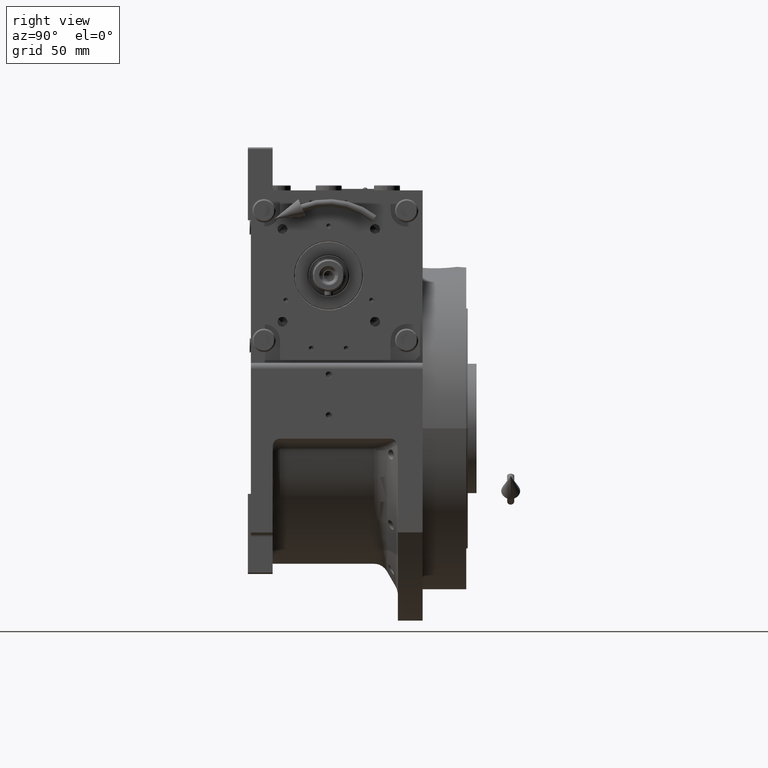
[diagram: clean part render]
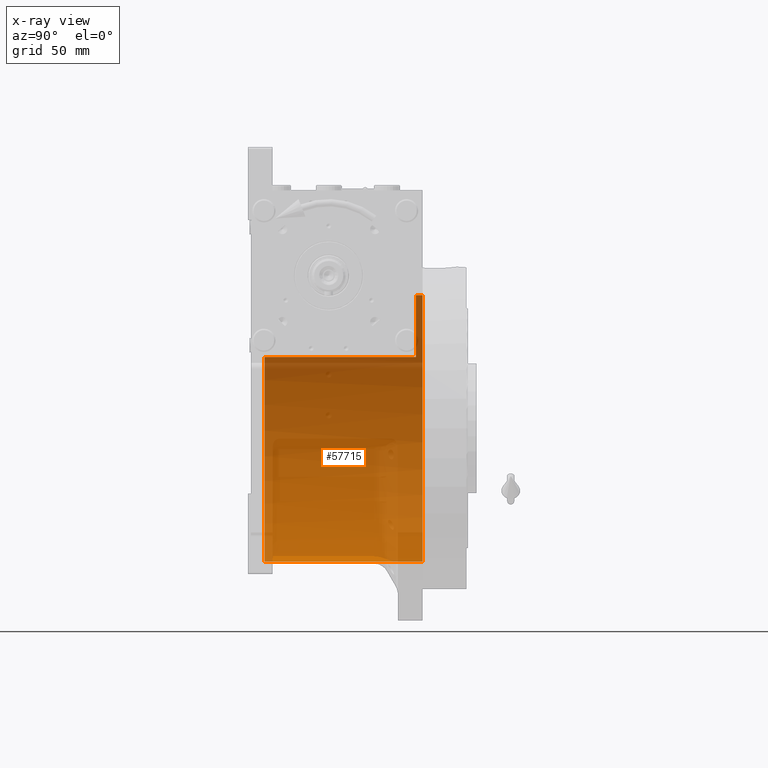
[diagram: x-ray — body ghosted, one internal face saturated and labeled with its STEP entity id]
A machine part, right view, then the same camera in x-ray: the body is ghosted and one INTERNAL B-rep face — a face not visible from any outside direction — is saturated and labeled: STEP entity #57715.
In plain terms, the highlighted cylindrical surface (partial cylindrical patch) has radius 91.5 mm, axis along (0, -1, 0).
Its self-contained STEP definition (entity closure, byte-faithful):
#610 = DIRECTION ( 'NONE',  ( 1.776356839400250465E-15, 0.000000000000000000, -1.000000000000000000 ) ) ;
#3846 = LINE ( 'NONE', #20744, #57020 ) ;
#9654 = ORIENTED_EDGE ( 'NONE', *, *, #63723, .F. ) ;
#10109 = DIRECTION ( 'NONE',  ( -0.000000000000000000, -1.000000000000000000, -0.000000000000000000 ) ) ;
#11259 = VECTOR ( 'NONE', #39001, 1000.000000000000000 ) ;
#12697 = EDGE_LOOP ( 'NONE', ( #41668, #44675, #9654, #53638, #35046, #20984 ) ) ;
#13686 = DIRECTION ( 'NONE',  ( 0.000000000000000000, 0.000000000000000000, -1.000000000000000000 ) ) ;
#13711 = DIRECTION ( 'NONE',  ( 0.000000000000000000, 1.000000000000000000, 0.000000000000000000 ) ) ;
#14318 = DIRECTION ( 'NONE',  ( -0.000000000000000000, 1.000000000000000000, -0.000000000000000000 ) ) ;
#15489 = DIRECTION ( 'NONE',  ( 0.000000000000000000, 1.000000000000000000, 0.000000000000000000 ) ) ;
#17531 = CYLINDRICAL_SURFACE ( 'NONE', #20895, 91.50000000000000000 ) ;
#18977 = AXIS2_PLACEMENT_3D ( 'NONE', #52342, #15489, #610 ) ;
#20585 = DIRECTION ( 'NONE',  ( 0.000000000000000000, 0.000000000000000000, 1.000000000000000000 ) ) ;
#20744 = CARTESIAN_POINT ( 'NONE',  ( -77.27386362800812947, 69.00000000000004263, 48.99999999999998579 ) ) ;
#20895 = AXIS2_PLACEMENT_3D ( 'NONE', #58463, #38171, #13686 ) ;
#20984 = ORIENTED_EDGE ( 'NONE', *, *, #23981, .F. ) ;
#21379 = CARTESIAN_POINT ( 'NONE',  ( 1.120551821219827868E-14, 64.50000000000000000, 91.50000000000000000 ) ) ;
#23301 = CIRCLE ( 'NONE', #18977, 91.50000000000000000 ) ;
#23744 = VECTOR ( 'NONE', #44335, 1000.000000000000000 ) ;
#23981 = EDGE_CURVE ( 'NONE', #55146, #62323, #54555, .T. ) ;
#26942 = EDGE_CURVE ( 'NONE', #62875, #50487, #3846, .T. ) ;
#27127 = AXIS2_PLACEMENT_3D ( 'NONE', #57102, #10109, #20585 ) ;
#28507 = LINE ( 'NONE', #64325, #23744 ) ;
#32605 = EDGE_CURVE ( 'NONE', #49539, #55146, #55291, .T. ) ;
#34344 = DIRECTION ( 'NONE',  ( 0.000000000000000000, 0.000000000000000000, 1.000000000000000000 ) ) ;
#35046 = ORIENTED_EDGE ( 'NONE', *, *, #54368, .F. ) ;
#35819 = CIRCLE ( 'NONE', #64971, 91.50000000000000000 ) ;
#38171 = DIRECTION ( 'NONE',  ( 0.000000000000000000, -1.000000000000000000, 0.000000000000000000 ) ) ;
#38843 = CARTESIAN_POINT ( 'NONE',  ( 1.120551821219827868E-14, 60.00000000000000000, 91.50000000000000000 ) ) ;
#39001 = DIRECTION ( 'NONE',  ( 0.000000000000000000, -1.000000000000000000, 0.000000000000000000 ) ) ;
#40472 = VERTEX_POINT ( 'NONE', #38843 ) ;
#41668 = ORIENTED_EDGE ( 'NONE', *, *, #32605, .F. ) ;
#42322 = CARTESIAN_POINT ( 'NONE',  ( 0.000000000000000000, 64.50000000000000000, -91.50000000000000000 ) ) ;
#44040 = CARTESIAN_POINT ( 'NONE',  ( 0.000000000000000000, 69.00000000000004263, -91.50000000000000000 ) ) ;
#44335 = DIRECTION ( 'NONE',  ( 0.000000000000000000, -1.000000000000000000, 0.000000000000000000 ) ) ;
#44675 = ORIENTED_EDGE ( 'NONE', *, *, #52116, .T. ) ;
#49539 = VERTEX_POINT ( 'NONE', #21379 ) ;
#50487 = VERTEX_POINT ( 'NONE', #55250 ) ;
#50552 = CARTESIAN_POINT ( 'NONE',  ( -77.27386362800814368, -44.00000000000000000, 49.00000000000000000 ) ) ;
#52116 = EDGE_CURVE ( 'NONE', #49539, #40472, #28507, .T. ) ;
#52342 = CARTESIAN_POINT ( 'NONE',  ( 0.000000000000000000, 60.00000000000000000, 0.000000000000000000 ) ) ;
#53421 = CARTESIAN_POINT ( 'NONE',  ( 0.000000000000000000, -44.00000000000000000, -91.50000000000000000 ) ) ;
#53638 = ORIENTED_EDGE ( 'NONE', *, *, #26942, .F. ) ;
#54368 = EDGE_CURVE ( 'NONE', #62323, #62875, #35819, .T. ) ;
#54555 = LINE ( 'NONE', #44040, #11259 ) ;
#54643 = CARTESIAN_POINT ( 'NONE',  ( 0.000000000000000000, -44.00000000000000000, 0.000000000000000000 ) ) ;
#55146 = VERTEX_POINT ( 'NONE', #42322 ) ;
#55250 = CARTESIAN_POINT ( 'NONE',  ( -77.27386362800814368, 60.00000000000000000, 48.99999999999998579 ) ) ;
#55291 = CIRCLE ( 'NONE', #27127, 91.50000000000000000 ) ;
#57020 = VECTOR ( 'NONE', #14318, 1000.000000000000000 ) ;
#57102 = CARTESIAN_POINT ( 'NONE',  ( 0.000000000000000000, 64.50000000000000000, 0.000000000000000000 ) ) ;
#57715 = ADVANCED_FACE ( 'NONE', ( #60040 ), #17531, .F. ) ;
#58463 = CARTESIAN_POINT ( 'NONE',  ( 0.000000000000000000, 69.00000000000004263, 0.000000000000000000 ) ) ;
#60040 = FACE_OUTER_BOUND ( 'NONE', #12697, .T. ) ;
#62323 = VERTEX_POINT ( 'NONE', #53421 ) ;
#62875 = VERTEX_POINT ( 'NONE', #50552 ) ;
#63723 = EDGE_CURVE ( 'NONE', #50487, #40472, #23301, .T. ) ;
#64325 = CARTESIAN_POINT ( 'NONE',  ( 1.120551821219827868E-14, 69.00000000000004263, 91.50000000000000000 ) ) ;
#64971 = AXIS2_PLACEMENT_3D ( 'NONE', #54643, #13711, #34344 ) ;